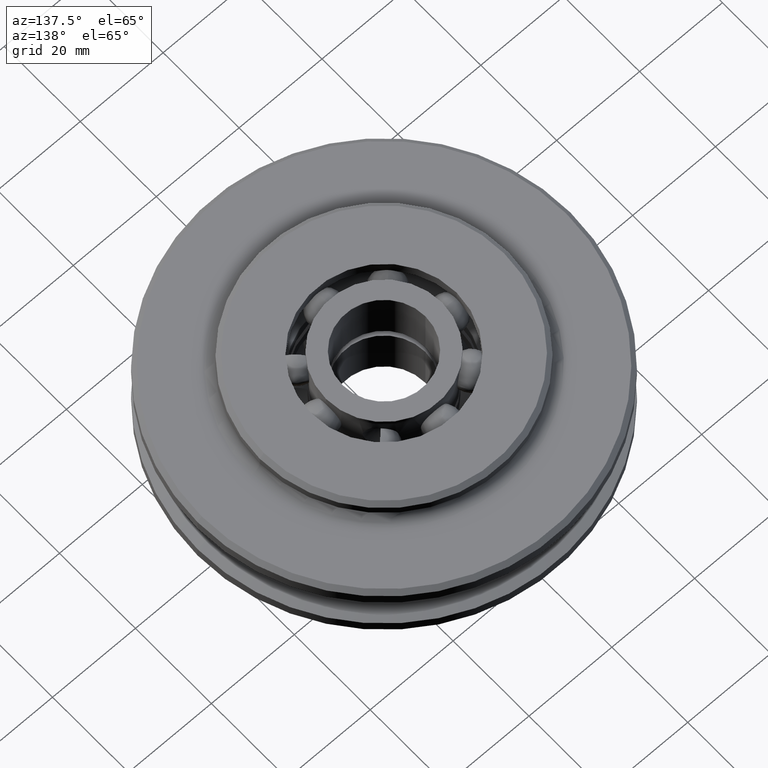
[diagram: clean part render]
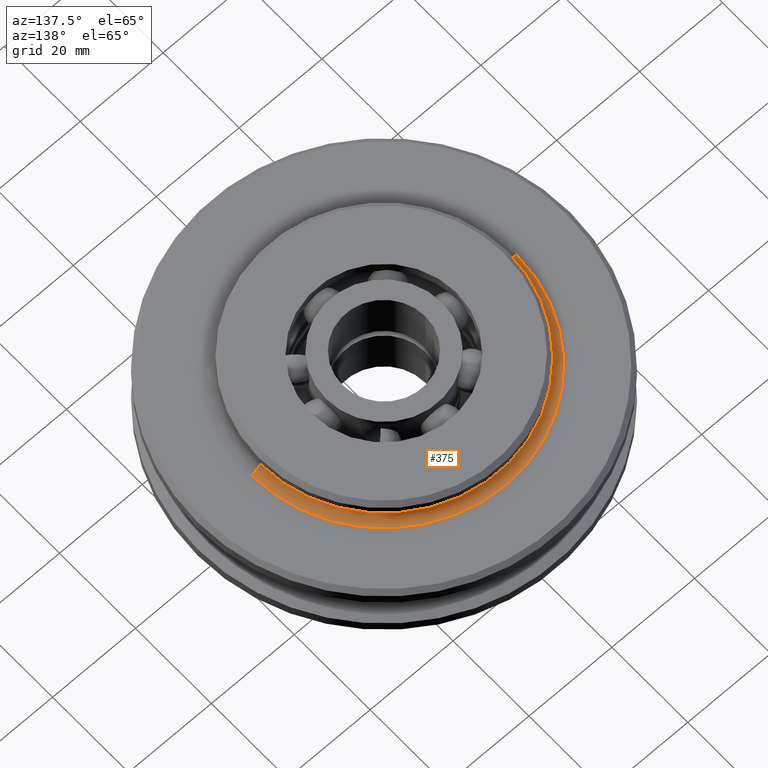
[diagram: same view with one face highlighted and labeled with its STEP entity id]
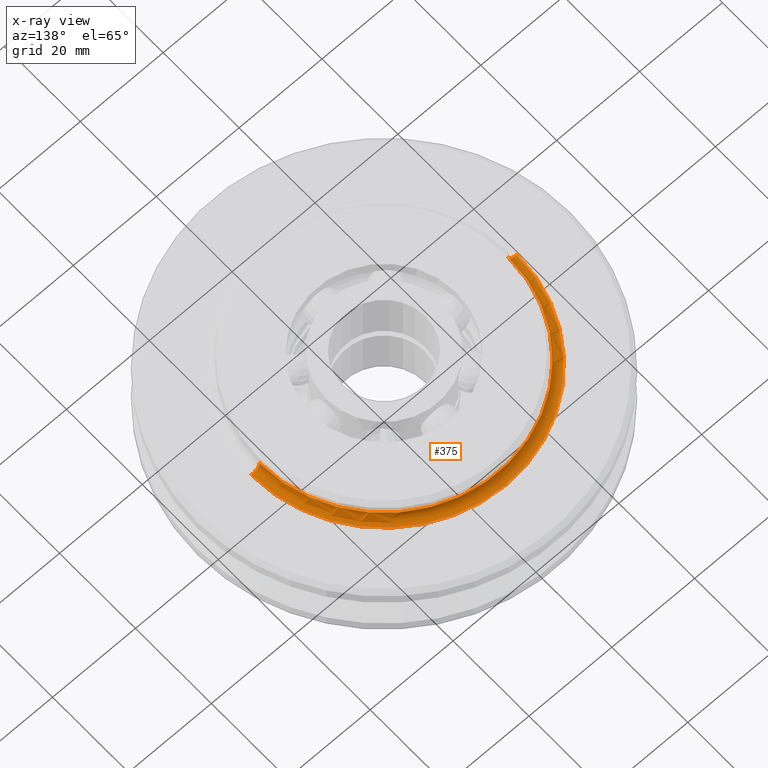
[diagram: x-ray of the same camera — body ghosted, the highlighted face saturated]
A machine part, auxiliary view. The second image highlights one B-rep face of the part: STEP entity #375.
The next image is the same camera in x-ray: the body ghosted, the highlighted face saturated — about 0% of this face is hidden behind the body in this view.
In plain terms, the highlighted toroidal blend (fillet) surface has major radius 32 mm and minor (blend) radius 2 mm.
Its self-contained STEP definition (entity closure, byte-faithful):
#375=ADVANCED_FACE('',(#778),#779,.F.);
#778=FACE_OUTER_BOUND('',#1188,.T.);
#779=TOROIDAL_SURFACE('',#1189,32.0,2.0);
#1188=EDGE_LOOP('',(#2451,#2452,#2453,#2454));
#1189=AXIS2_PLACEMENT_3D('',#2455,#2456,#2457);
#2451=ORIENTED_EDGE('',*,*,#2696,.T.);
#2452=ORIENTED_EDGE('',*,*,#2693,.F.);
#2453=ORIENTED_EDGE('',*,*,#2698,.T.);
#2454=ORIENTED_EDGE('',*,*,#3078,.T.);
#2455=CARTESIAN_POINT('',(0.0,0.0,10.0));
#2456=DIRECTION('',(0.0,0.0,1.0));
#2457=DIRECTION('',(1.0,0.0,0.0));
#2693=EDGE_CURVE('',#3321,#3323,#3324,.T.);
#2696=EDGE_CURVE('',#3327,#3323,#3328,.T.);
#2698=EDGE_CURVE('',#3321,#3329,#3331,.T.);
#3078=EDGE_CURVE('',#3329,#3327,#3895,.T.);
#3321=VERTEX_POINT('',#4984);
#3323=VERTEX_POINT('',#4987);
#3324=CIRCLE('',#4988,30.0);
#3327=VERTEX_POINT('',#4992);
#3328=CIRCLE('',#4993,2.0);
#3329=VERTEX_POINT('',#4994);
#3331=CIRCLE('',#4996,2.0);
#3895=CIRCLE('',#8070,32.0);
#4984=CARTESIAN_POINT('',(30.0,0.0,10.0));
#4987=CARTESIAN_POINT('',(-30.0,3.67394039744206E-015,10.0));
#4988=AXIS2_PLACEMENT_3D('',#8274,#8275,#8276);
#4992=CARTESIAN_POINT('',(-32.0,3.91886975727153E-015,8.0));
#4993=AXIS2_PLACEMENT_3D('',#8278,#8279,#8280);
#4994=CARTESIAN_POINT('',(32.0,0.0,8.0));
#4996=AXIS2_PLACEMENT_3D('',#8284,#8285,#8286);
#8070=AXIS2_PLACEMENT_3D('',#8683,#8684,#8685);
#8274=CARTESIAN_POINT('',(0.0,0.0,10.0));
#8275=DIRECTION('',(0.0,0.0,1.0));
#8276=DIRECTION('',(1.0,0.0,0.0));
#8278=CARTESIAN_POINT('',(-32.0,3.91886975727153E-015,10.0));
#8279=DIRECTION('',(-1.22464679914735E-016,-1.0,0.0));
#8280=DIRECTION('',(-1.0,1.22464679914735E-016,-0.0));
#8284=CARTESIAN_POINT('',(32.0,-3.91886975727153E-015,10.0));
#8285=DIRECTION('',(-1.22464679914735E-016,-1.0,0.0));
#8286=DIRECTION('',(1.0,-1.22464679914735E-016,0.0));
#8683=CARTESIAN_POINT('',(0.0,0.0,8.0));
#8684=DIRECTION('',(0.0,0.0,1.0));
#8685=DIRECTION('',(1.0,0.0,0.0));